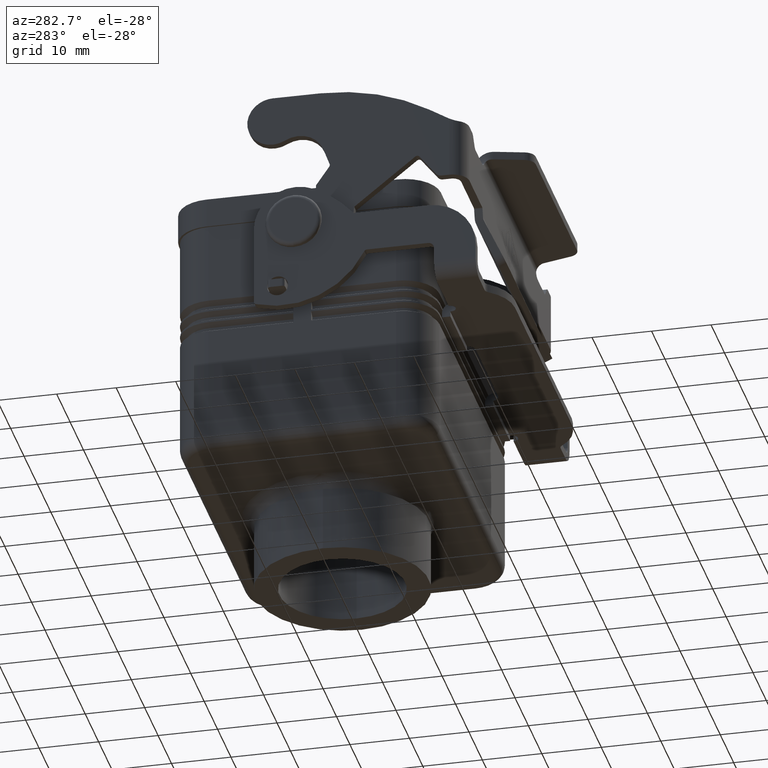
[diagram: clean part render]
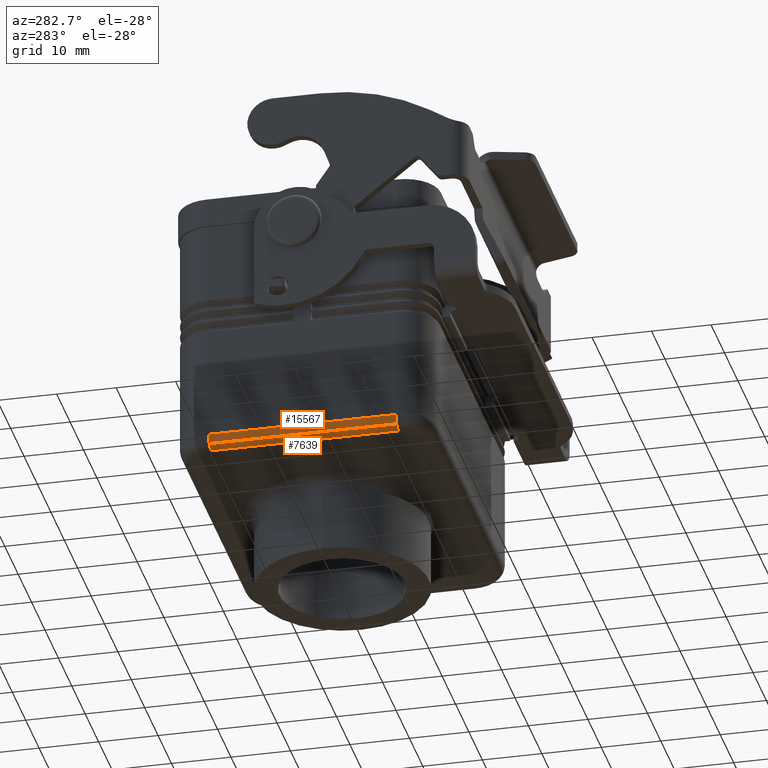
[diagram: same view with one multi-face feature highlighted, each face labeled with its STEP entity id]
A machine part, auxiliary view. The highlighted faces form ONE feature: a constant-radius fillet chain: 2 tangent blend faces with common blend radius 2 mm. The faces share edges in the B-rep.
Their STEP definitions:
[1] entity #7639 (Cylinder):
#7598=CARTESIAN_POINT('',(-28.0,7.875000000000002,-34.500000000000000));
#7599=DIRECTION('',(0.0,-1.0,1.872518E-032));
#7600=DIRECTION('',(-0.707106781186548,0.0,-0.707106781186548));
#7601=AXIS2_PLACEMENT_3D('',#7598,#7599,#7600);
#7602=CYLINDRICAL_SURFACE('',#7601,2.000000000000000);
#7603=CARTESIAN_POINT('',(-29.414213562373092,15.750000000000004,-35.914213562373092));
#7604=VERTEX_POINT('',#7603);
#7605=CARTESIAN_POINT('',(-29.414213562373096,-15.750000000000005,-35.914213562373092));
#7606=VERTEX_POINT('',#7605);
#7607=CARTESIAN_POINT('',(-29.414213562373092,15.750000000000004,-35.914213562373092));
#7608=DIRECTION('',(0.0,-1.0,0.0));
#7609=VECTOR('',#7608,31.500000000000007);
#7610=LINE('',#7607,#7609);
#7611=EDGE_CURVE('',#7604,#7606,#7610,.T.);
#7612=ORIENTED_EDGE('',*,*,#7611,.F.);
#7613=CARTESIAN_POINT('',(-27.999999999999993,15.750000000000004,-36.500000000000000));
#7614=VERTEX_POINT('',#7613);
#7615=CARTESIAN_POINT('',(-27.999999999999993,15.750000000000004,-34.500000000000000));
#7616=DIRECTION('',(0.0,1.0,0.0));
#7617=DIRECTION('',(0.0,0.0,-1.0));
#7618=AXIS2_PLACEMENT_3D('',#7615,#7616,#7617);
#7619=CIRCLE('',#7618,2.000000000000002);
#7620=EDGE_CURVE('',#7614,#7604,#7619,.T.);
#7621=ORIENTED_EDGE('',*,*,#7620,.F.);
#7622=CARTESIAN_POINT('',(-28.0,-15.750000000000007,-36.500000000000000));
#7623=VERTEX_POINT('',#7622);
#7624=CARTESIAN_POINT('',(-27.999999999999993,15.750000000000004,-36.500000000000000));
#7625=DIRECTION('',(0.0,-1.0,0.0));
#7626=VECTOR('',#7625,31.500000000000011);
#7627=LINE('',#7624,#7626);
#7628=EDGE_CURVE('',#7614,#7623,#7627,.T.);
#7629=ORIENTED_EDGE('',*,*,#7628,.T.);
#7630=CARTESIAN_POINT('',(-28.0,-15.750000000000007,-34.500000000000000));
#7631=DIRECTION('',(0.0,1.0,0.0));
#7632=DIRECTION('',(0.0,0.0,-1.0));
#7633=AXIS2_PLACEMENT_3D('',#7630,#7631,#7632);
#7634=CIRCLE('',#7633,2.000000000000002);
#7635=EDGE_CURVE('',#7623,#7606,#7634,.T.);
#7636=ORIENTED_EDGE('',*,*,#7635,.T.);
#7637=EDGE_LOOP('',(#7612,#7621,#7629,#7636));
#7638=FACE_OUTER_BOUND('',#7637,.T.);
#7639=ADVANCED_FACE('',(#7638),#7602,.T.);
[2] entity #15567 (Cylinder):
#7603=CARTESIAN_POINT('',(-29.414213562373092,15.750000000000004,-35.914213562373092));
#7604=VERTEX_POINT('',#7603);
#7605=CARTESIAN_POINT('',(-29.414213562373096,-15.750000000000005,-35.914213562373092));
#7606=VERTEX_POINT('',#7605);
#7607=CARTESIAN_POINT('',(-29.414213562373092,15.750000000000004,-35.914213562373092));
#7608=DIRECTION('',(0.0,-1.0,0.0));
#7609=VECTOR('',#7608,31.500000000000007);
#7610=LINE('',#7607,#7609);
#7611=EDGE_CURVE('',#7604,#7606,#7610,.T.);
#10662=CARTESIAN_POINT('',(-30.0,15.750000000000004,-34.500000000000000));
#10663=VERTEX_POINT('',#10662);
#10670=CARTESIAN_POINT('',(-30.0,-15.750000000000004,-34.500000000000000));
#10671=VERTEX_POINT('',#10670);
#10672=CARTESIAN_POINT('',(-30.0,-15.750000000000004,-34.500000000000000));
#10673=DIRECTION('',(0.0,1.0,0.0));
#10674=VECTOR('',#10673,31.500000000000007);
#10675=LINE('',#10672,#10674);
#10676=EDGE_CURVE('',#10671,#10663,#10675,.T.);
#14446=CARTESIAN_POINT('',(-28.0,-15.750000000000007,-34.500000000000000));
#14447=DIRECTION('',(0.0,1.0,0.0));
#14448=DIRECTION('',(0.0,0.0,-1.0));
#14449=AXIS2_PLACEMENT_3D('',#14446,#14447,#14448);
#14450=CIRCLE('',#14449,2.000000000000002);
#14451=EDGE_CURVE('',#7606,#10671,#14450,.T.);
#14495=CARTESIAN_POINT('',(-27.999999999999993,15.750000000000004,-34.500000000000000));
#14496=DIRECTION('',(0.0,1.0,0.0));
#14497=DIRECTION('',(0.0,0.0,-1.0));
#14498=AXIS2_PLACEMENT_3D('',#14495,#14496,#14497);
#14499=CIRCLE('',#14498,2.000000000000002);
#14500=EDGE_CURVE('',#7604,#10663,#14499,.T.);
#15556=CARTESIAN_POINT('',(-28.0,7.875000000000002,-34.500000000000000));
#15557=DIRECTION('',(0.0,-1.0,1.872518E-032));
#15558=DIRECTION('',(-0.707106781186548,0.0,-0.707106781186548));
#15559=AXIS2_PLACEMENT_3D('',#15556,#15557,#15558);
#15560=CYLINDRICAL_SURFACE('',#15559,2.000000000000000);
#15561=ORIENTED_EDGE('',*,*,#7611,.T.);
#15562=ORIENTED_EDGE('',*,*,#14451,.T.);
#15563=ORIENTED_EDGE('',*,*,#10676,.T.);
#15564=ORIENTED_EDGE('',*,*,#14500,.F.);
#15565=EDGE_LOOP('',(#15561,#15562,#15563,#15564));
#15566=FACE_OUTER_BOUND('',#15565,.T.);
#15567=ADVANCED_FACE('',(#15566),#15560,.T.);